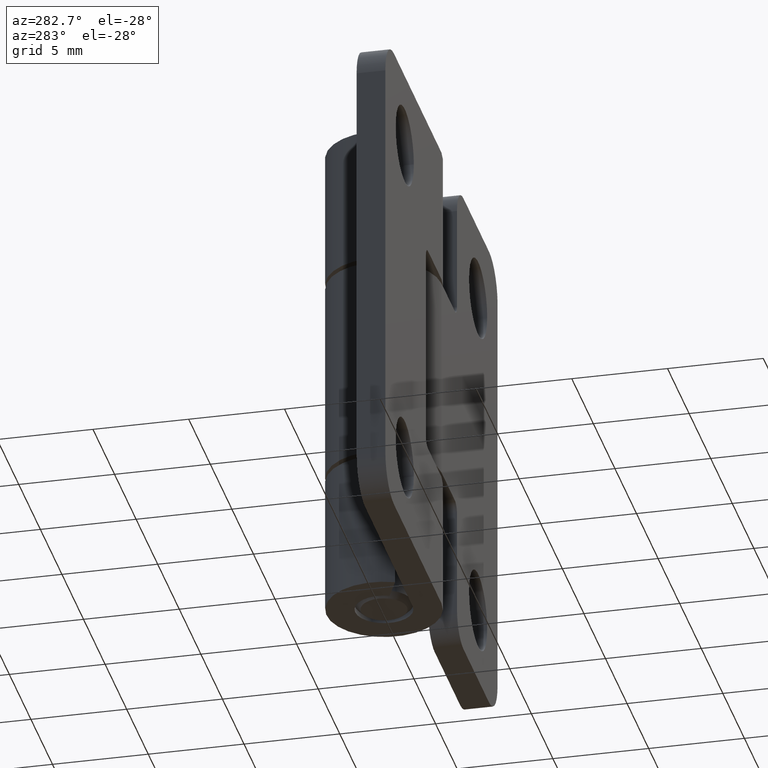
[diagram: clean part render]
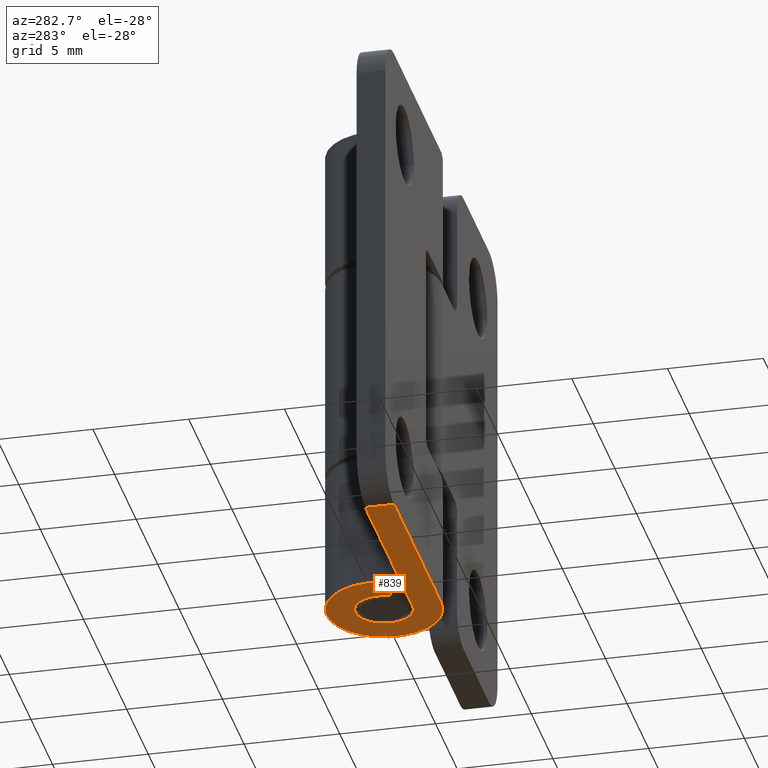
[diagram: same view with one face highlighted and labeled with its STEP entity id]
A machine part, auxiliary view. The second image highlights one B-rep face of the part: STEP entity #839.
In plain terms, the highlighted planar face has unit normal (0, 0, -1).
Its self-contained STEP definition (entity closure, byte-faithful):
#75=PLANE('',#914);
#109=FACE_OUTER_BOUND('',#166,.T.);
#166=EDGE_LOOP('',(#675,#676,#677,#678,#679,#680));
#215=LINE('',#1290,#279);
#222=LINE('',#1305,#286);
#231=LINE('',#1335,#295);
#235=LINE('',#1357,#299);
#279=VECTOR('',#1014,1.5);
#286=VECTOR('',#1027,11.);
#295=VECTOR('',#1062,1.5);
#299=VECTOR('',#1090,11.);
#347=CIRCLE('',#895,3.);
#348=CIRCLE('',#897,1.5);
#398=VERTEX_POINT('',#1287);
#399=VERTEX_POINT('',#1289);
#404=VERTEX_POINT('',#1303);
#409=VERTEX_POINT('',#1321);
#410=VERTEX_POINT('',#1323);
#411=VERTEX_POINT('',#1327);
#480=EDGE_CURVE('',#398,#399,#215,.T.);
#489=EDGE_CURVE('',#398,#404,#222,.T.);
#498=EDGE_CURVE('',#410,#409,#347,.T.);
#501=EDGE_CURVE('',#404,#411,#348,.T.);
#504=EDGE_CURVE('',#411,#410,#231,.T.);
#513=EDGE_CURVE('',#409,#399,#235,.T.);
#675=ORIENTED_EDGE('',*,*,#480,.F.);
#676=ORIENTED_EDGE('',*,*,#489,.T.);
#677=ORIENTED_EDGE('',*,*,#501,.T.);
#678=ORIENTED_EDGE('',*,*,#504,.T.);
#679=ORIENTED_EDGE('',*,*,#498,.T.);
#680=ORIENTED_EDGE('',*,*,#513,.T.);
#839=ADVANCED_FACE('',(#109),#75,.T.);
#895=AXIS2_PLACEMENT_3D('',#1324,#1047,#1048);
#897=AXIS2_PLACEMENT_3D('',#1329,#1053,#1054);
#914=AXIS2_PLACEMENT_3D('',#1360,#1094,#1095);
#1014=DIRECTION('',(0.,-1.,0.));
#1027=DIRECTION('',(-1.,-2.56205313375036E-16,0.));
#1047=DIRECTION('center_axis',(0.,0.,1.));
#1048=DIRECTION('ref_axis',(0.916515138991168,-0.4,0.));
#1053=DIRECTION('center_axis',(0.,0.,-1.));
#1054=DIRECTION('ref_axis',(-0.916515138991168,0.4,0.));
#1062=DIRECTION('',(0.916515138991168,-0.4,0.));
#1090=DIRECTION('',(1.,1.70803542250024E-16,0.));
#1094=DIRECTION('center_axis',(0.,0.,1.));
#1095=DIRECTION('ref_axis',(1.,0.,0.));
#1287=CARTESIAN_POINT('',(11.,-1.5,13.));
#1289=CARTESIAN_POINT('',(11.,-3.,13.));
#1290=CARTESIAN_POINT('',(11.,-1.5,13.));
#1303=CARTESIAN_POINT('',(5.55111512312578E-16,-1.5,13.));
#1305=CARTESIAN_POINT('',(13.,-1.5,13.));
#1321=CARTESIAN_POINT('',(5.55111512312578E-16,-3.,13.));
#1323=CARTESIAN_POINT('',(2.7495454169735,-1.2,13.));
#1324=CARTESIAN_POINT('Origin',(0.,0.,13.));
#1327=CARTESIAN_POINT('',(1.37477270848675,-0.6,13.));
#1329=CARTESIAN_POINT('Origin',(0.,0.,13.));
#1335=CARTESIAN_POINT('',(1.37477270848675,-0.6,13.));
#1357=CARTESIAN_POINT('',(0.,-3.,13.));
#1360=CARTESIAN_POINT('Origin',(5.,-2.77555756156289E-16,13.));